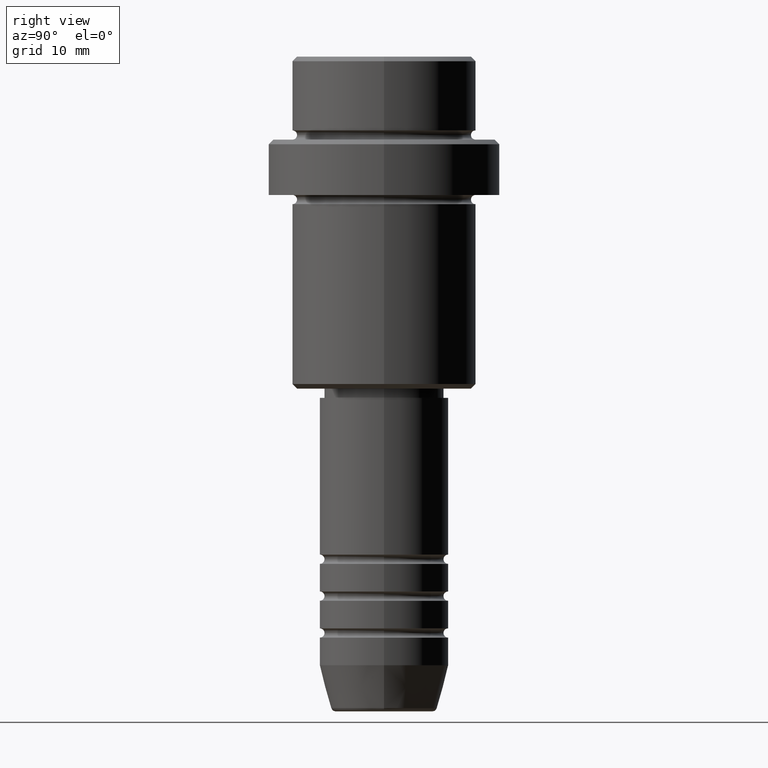
[diagram: clean part render]
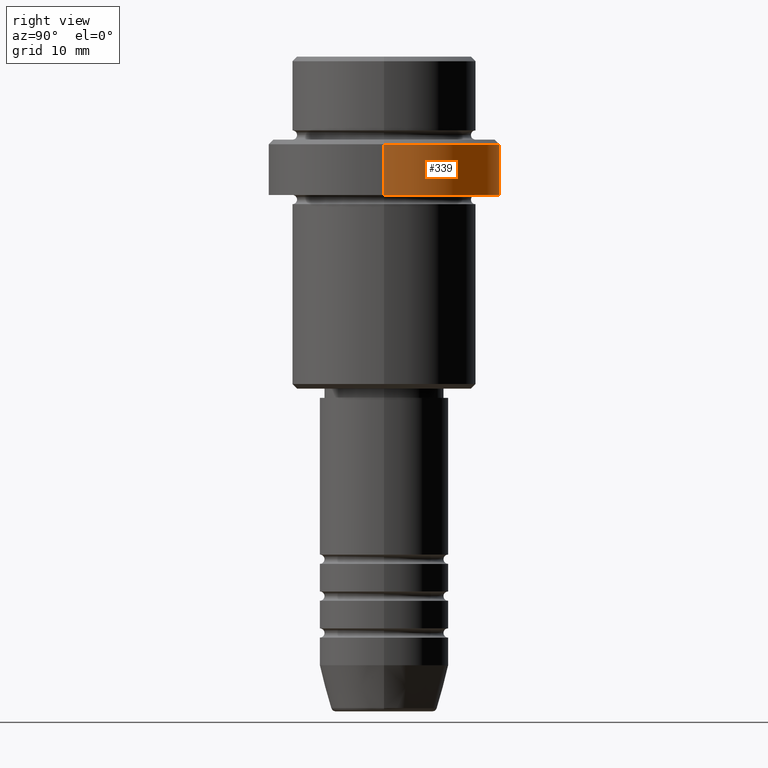
[diagram: same view with one face highlighted and labeled with its STEP entity id]
A machine part, right view. The second image highlights one B-rep face of the part: STEP entity #339.
In plain terms, the highlighted cylindrical surface (partial cylindrical patch) has radius 12.5 mm, axis along (-0, -0, 1).
Its self-contained STEP definition (entity closure, byte-faithful):
#9 = VERTEX_POINT ( 'NONE', #75 ) ;
#38 = EDGE_CURVE ( 'NONE', #778, #365, #465, .T. ) ;
#56 = ORIENTED_EDGE ( 'NONE', *, *, #38, .T. ) ;
#75 = CARTESIAN_POINT ( 'NONE',  ( 12.50000000000000000, 0.000000000000000000, -15.00000000000000178 ) ) ;
#103 = EDGE_CURVE ( 'NONE', #9, #1214, #766, .T. ) ;
#135 = AXIS2_PLACEMENT_3D ( 'NONE', #663, #337, #762 ) ;
#153 = EDGE_CURVE ( 'NONE', #1214, #778, #1105, .T. ) ;
#174 = DIRECTION ( 'NONE',  ( 0.000000000000000000, 0.000000000000000000, -1.000000000000000000 ) ) ;
#233 = DIRECTION ( 'NONE',  ( 1.000000000000000000, 0.000000000000000000, 0.000000000000000000 ) ) ;
#234 = LINE ( 'NONE', #246, #1208 ) ;
#245 = DIRECTION ( 'NONE',  ( -0.000000000000000000, -0.000000000000000000, 1.000000000000000000 ) ) ;
#246 = CARTESIAN_POINT ( 'NONE',  ( 12.50000000000000000, 0.000000000000000000, 0.000000000000000000 ) ) ;
#337 = DIRECTION ( 'NONE',  ( -0.000000000000000000, -0.000000000000000000, 1.000000000000000000 ) ) ;
#339 = ADVANCED_FACE ( 'NONE', ( #583 ), #776, .T. ) ;
#347 = CARTESIAN_POINT ( 'NONE',  ( -12.50000000000000000, 1.530808498934191521E-15, -9.500000000000000000 ) ) ;
#365 = VERTEX_POINT ( 'NONE', #588 ) ;
#455 = EDGE_LOOP ( 'NONE', ( #1234, #1223, #56, #1245 ) ) ;
#465 = CIRCLE ( 'NONE', #690, 12.50000000000000000 ) ;
#561 = CARTESIAN_POINT ( 'NONE',  ( -12.50000000000000000, 1.530808498934191521E-15, 0.000000000000000000 ) ) ;
#583 = FACE_OUTER_BOUND ( 'NONE', #455, .T. ) ;
#588 = CARTESIAN_POINT ( 'NONE',  ( 12.50000000000000000, 0.000000000000000000, -9.500000000000000000 ) ) ;
#597 = VECTOR ( 'NONE', #989, 1000.000000000000000 ) ;
#663 = CARTESIAN_POINT ( 'NONE',  ( 0.000000000000000000, 0.000000000000000000, -15.00000000000000178 ) ) ;
#690 = AXIS2_PLACEMENT_3D ( 'NONE', #848, #174, #1164 ) ;
#747 = AXIS2_PLACEMENT_3D ( 'NONE', #806, #245, #233 ) ;
#762 = DIRECTION ( 'NONE',  ( 1.000000000000000000, 0.000000000000000000, 0.000000000000000000 ) ) ;
#766 = CIRCLE ( 'NONE', #135, 12.50000000000000000 ) ;
#772 = CARTESIAN_POINT ( 'NONE',  ( -12.50000000000000000, 1.530808498934191521E-15, -15.00000000000000178 ) ) ;
#776 = CYLINDRICAL_SURFACE ( 'NONE', #747, 12.50000000000000000 ) ;
#778 = VERTEX_POINT ( 'NONE', #347 ) ;
#806 = CARTESIAN_POINT ( 'NONE',  ( 0.000000000000000000, 0.000000000000000000, 0.000000000000000000 ) ) ;
#848 = CARTESIAN_POINT ( 'NONE',  ( 0.000000000000000000, 0.000000000000000000, -9.500000000000000000 ) ) ;
#989 = DIRECTION ( 'NONE',  ( -0.000000000000000000, -0.000000000000000000, 1.000000000000000000 ) ) ;
#990 = DIRECTION ( 'NONE',  ( -0.000000000000000000, -0.000000000000000000, 1.000000000000000000 ) ) ;
#1105 = LINE ( 'NONE', #561, #597 ) ;
#1164 = DIRECTION ( 'NONE',  ( 1.000000000000000000, 0.000000000000000000, 0.000000000000000000 ) ) ;
#1208 = VECTOR ( 'NONE', #990, 1000.000000000000000 ) ;
#1214 = VERTEX_POINT ( 'NONE', #772 ) ;
#1223 = ORIENTED_EDGE ( 'NONE', *, *, #153, .T. ) ;
#1234 = ORIENTED_EDGE ( 'NONE', *, *, #103, .T. ) ;
#1242 = EDGE_CURVE ( 'NONE', #9, #365, #234, .T. ) ;
#1245 = ORIENTED_EDGE ( 'NONE', *, *, #1242, .F. ) ;